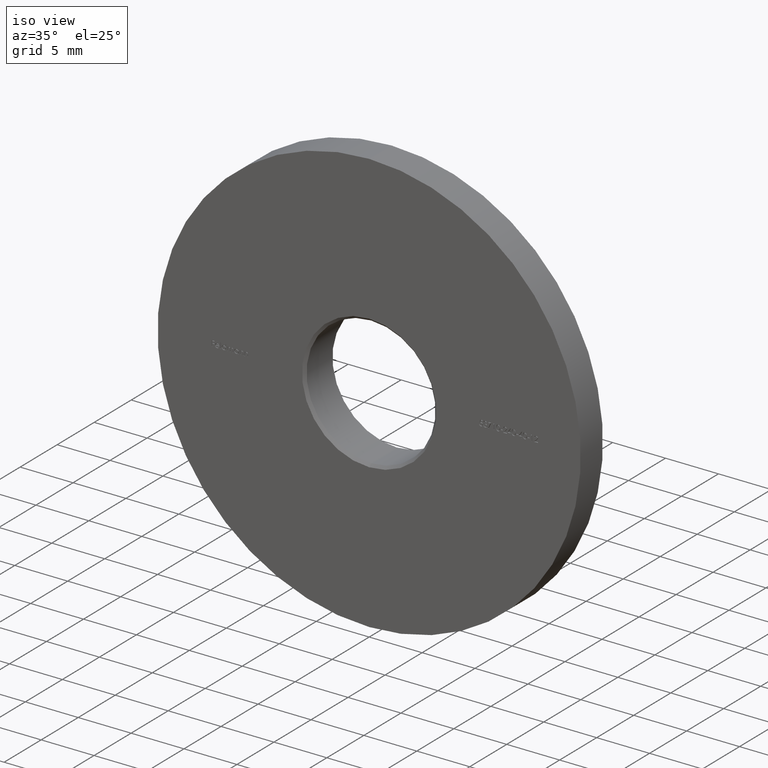
[diagram: clean part render]
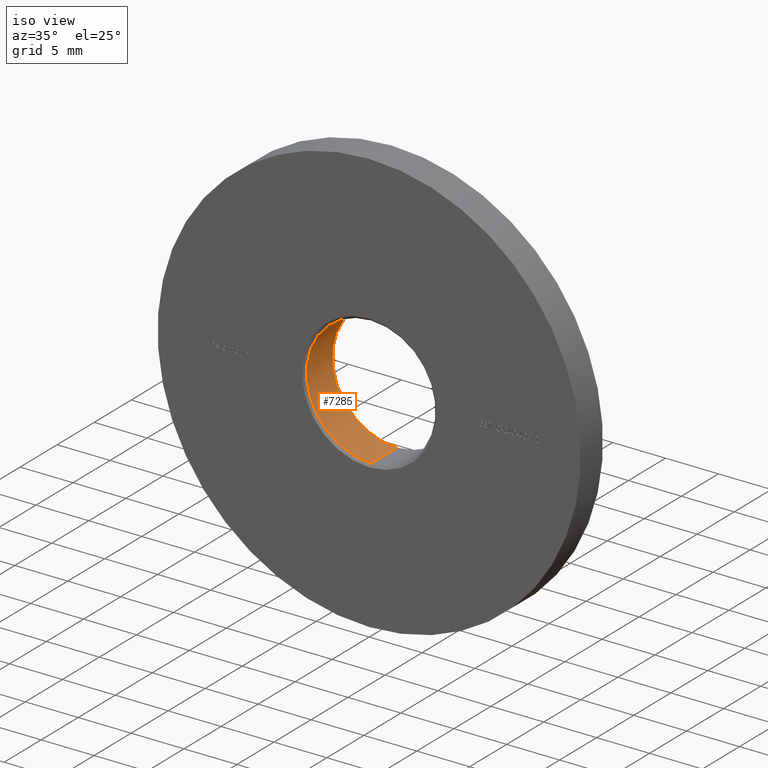
[diagram: same view with one face highlighted and labeled with its STEP entity id]
A machine part, iso view. The second image highlights one B-rep face of the part: STEP entity #7285.
In plain terms, the highlighted cylindrical surface (partial cylindrical patch) has radius 6.1 mm, axis along (-0, -1, -0).
Its self-contained STEP definition (entity closure, byte-faithful):
#750 = VECTOR ( 'NONE', #3050, 1000.000000000000000 ) ;
#1269 = ORIENTED_EDGE ( 'NONE', *, *, #2110, .F. ) ;
#1844 = EDGE_CURVE ( 'NONE', #13233, #3359, #11834, .T. ) ;
#1908 = CARTESIAN_POINT ( 'NONE',  ( 0.000000000000000000, 3.749999999999991118, 0.000000000000000000 ) ) ;
#1940 = VECTOR ( 'NONE', #10628, 1000.000000000000000 ) ;
#1952 = CYLINDRICAL_SURFACE ( 'NONE', #12727, 6.099999999999999645 ) ;
#2110 = EDGE_CURVE ( 'NONE', #13233, #2462, #10373, .T. ) ;
#2462 = VERTEX_POINT ( 'NONE', #9804 ) ;
#3050 = DIRECTION ( 'NONE',  ( -0.000000000000000000, -1.000000000000000000, -0.000000000000000000 ) ) ;
#3086 = DIRECTION ( 'NONE',  ( 0.000000000000000000, 1.000000000000000000, 0.000000000000000000 ) ) ;
#3359 = VERTEX_POINT ( 'NONE', #10829 ) ;
#3418 = FACE_OUTER_BOUND ( 'NONE', #8775, .T. ) ;
#4607 = ORIENTED_EDGE ( 'NONE', *, *, #6581, .T. ) ;
#4641 = VERTEX_POINT ( 'NONE', #9358 ) ;
#4993 = AXIS2_PLACEMENT_3D ( 'NONE', #1908, #3086, #5518 ) ;
#5518 = DIRECTION ( 'NONE',  ( 0.000000000000000000, 0.000000000000000000, 1.000000000000000000 ) ) ;
#6581 = EDGE_CURVE ( 'NONE', #4641, #2462, #9267, .T. ) ;
#6922 = ORIENTED_EDGE ( 'NONE', *, *, #1844, .T. ) ;
#7285 = ADVANCED_FACE ( 'NONE', ( #3418 ), #1952, .F. ) ;
#7842 = DIRECTION ( 'NONE',  ( -0.000000000000000000, -1.000000000000000000, -0.000000000000000000 ) ) ;
#8775 = EDGE_LOOP ( 'NONE', ( #6922, #10708, #4607, #1269 ) ) ;
#9150 = EDGE_CURVE ( 'NONE', #3359, #4641, #10666, .T. ) ;
#9267 = CIRCLE ( 'NONE', #12026, 6.099999999999999645 ) ;
#9358 = CARTESIAN_POINT ( 'NONE',  ( 7.470345474798854293E-16, 0.2500000000000019429, 6.099999999999999645 ) ) ;
#9804 = CARTESIAN_POINT ( 'NONE',  ( 0.000000000000000000, 0.2500000000000019429, -6.099999999999999645 ) ) ;
#10165 = CARTESIAN_POINT ( 'NONE',  ( 7.470345474798854293E-16, 4.000000000000000000, 6.099999999999999645 ) ) ;
#10373 = LINE ( 'NONE', #13435, #750 ) ;
#10427 = DIRECTION ( 'NONE',  ( -0.000000000000000000, -1.000000000000000000, -0.000000000000000000 ) ) ;
#10628 = DIRECTION ( 'NONE',  ( -0.000000000000000000, -1.000000000000000000, -0.000000000000000000 ) ) ;
#10666 = LINE ( 'NONE', #10165, #1940 ) ;
#10708 = ORIENTED_EDGE ( 'NONE', *, *, #9150, .T. ) ;
#10829 = CARTESIAN_POINT ( 'NONE',  ( 7.470345474798854293E-16, 3.749999999999991118, 6.099999999999999645 ) ) ;
#11425 = CARTESIAN_POINT ( 'NONE',  ( 0.000000000000000000, 0.2500000000000019429, 0.000000000000000000 ) ) ;
#11603 = DIRECTION ( 'NONE',  ( 0.000000000000000000, 0.000000000000000000, -1.000000000000000000 ) ) ;
#11834 = CIRCLE ( 'NONE', #4993, 6.099999999999999645 ) ;
#12026 = AXIS2_PLACEMENT_3D ( 'NONE', #11425, #7842, #12607 ) ;
#12607 = DIRECTION ( 'NONE',  ( 0.000000000000000000, 0.000000000000000000, 1.000000000000000000 ) ) ;
#12687 = CARTESIAN_POINT ( 'NONE',  ( 0.000000000000000000, 4.000000000000000000, 0.000000000000000000 ) ) ;
#12727 = AXIS2_PLACEMENT_3D ( 'NONE', #12687, #10427, #11603 ) ;
#13233 = VERTEX_POINT ( 'NONE', #14734 ) ;
#13435 = CARTESIAN_POINT ( 'NONE',  ( 0.000000000000000000, 4.000000000000000000, -6.099999999999999645 ) ) ;
#14734 = CARTESIAN_POINT ( 'NONE',  ( 0.000000000000000000, 3.749999999999991118, -6.099999999999999645 ) ) ;